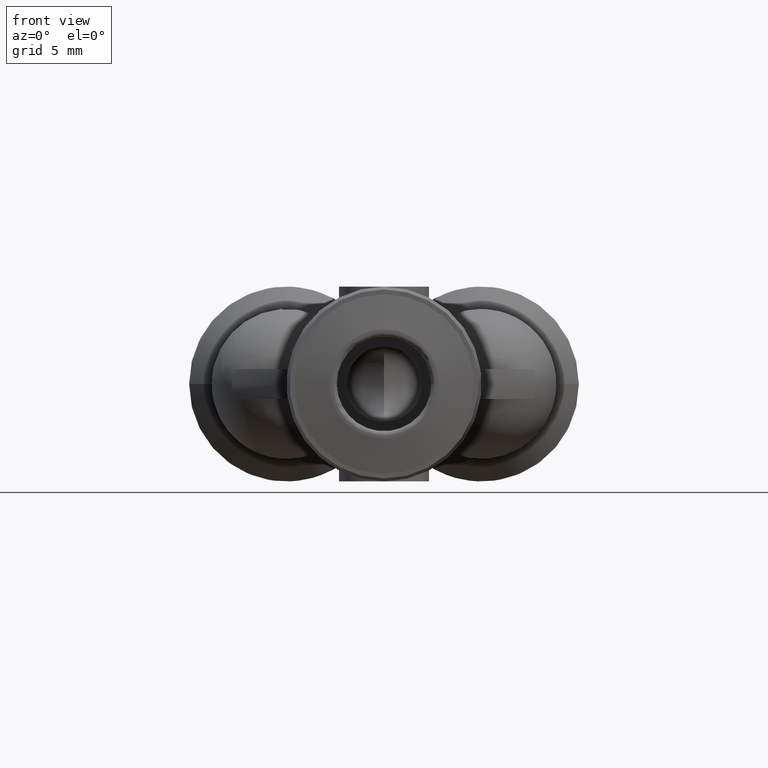
[diagram: clean part render]
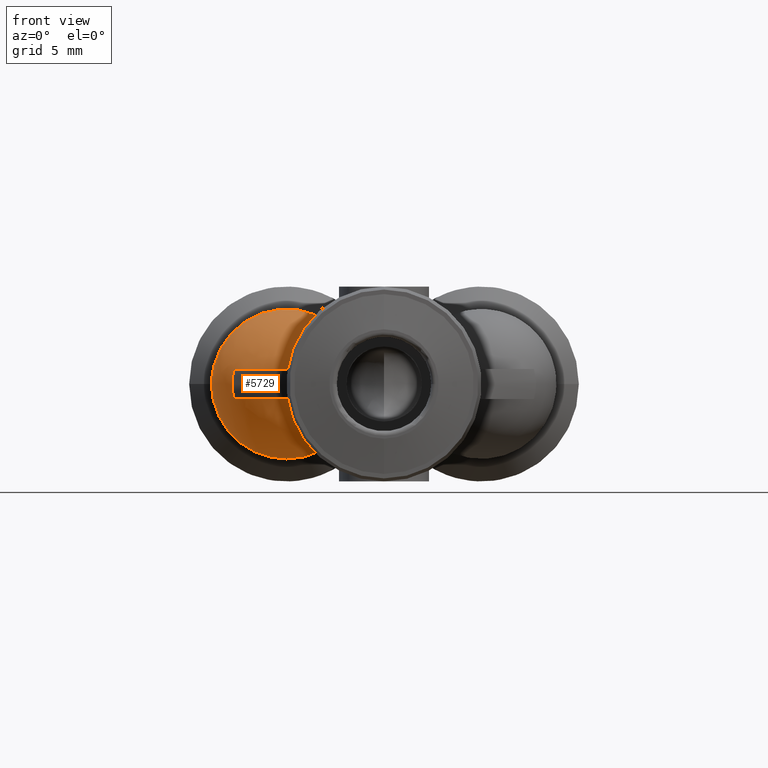
[diagram: same view with one face highlighted and labeled with its STEP entity id]
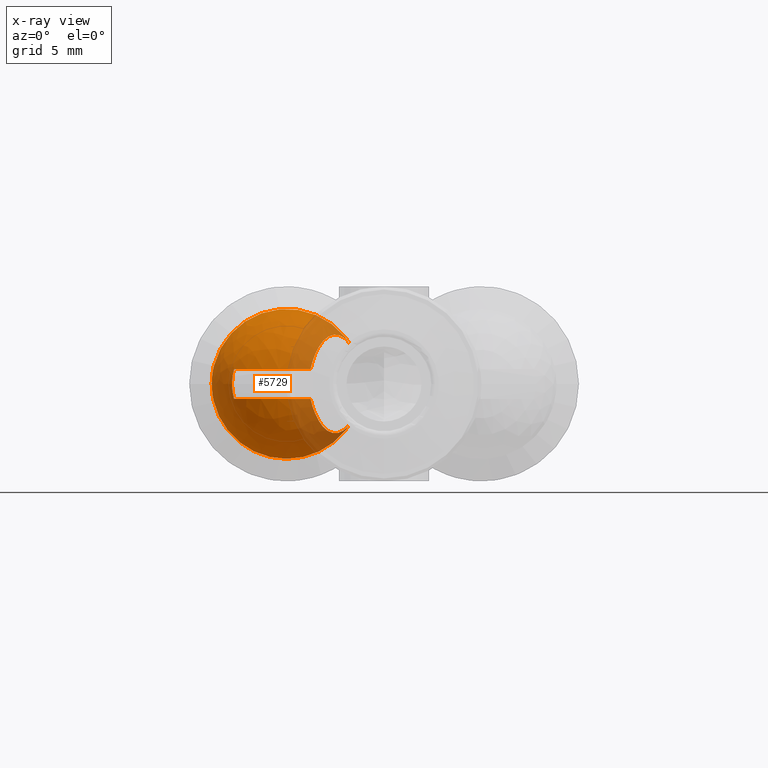
[diagram: x-ray of the same camera — body ghosted, the highlighted face saturated]
A machine part, front view. The second image highlights one B-rep face of the part: STEP entity #5729.
The next image is the same camera in x-ray: the body ghosted, the highlighted face saturated — about 24% of this face is hidden behind the body in this view.
In plain terms, the highlighted face is a freeform B-spline surface patch.
Its self-contained STEP definition (entity closure, byte-faithful):
#22 = DIRECTION ( 'NONE',  ( -0.0000000000000000000, -1.000000000000000000, 4.636897484427861500E-014 ) ) ;
#24 = VERTEX_POINT ( 'NONE', #5102 ) ;
#29 = B_SPLINE_CURVE_WITH_KNOTS ( 'NONE', 3,
 ( #3671, #574, #5069, #2365 ),
 .UNSPECIFIED., .F., .F.,
 ( 4, 4 ),
 ( 0.0000000000000000000, 1.000000000000000000 ),
 .UNSPECIFIED. ) ;
#60 = CARTESIAN_POINT ( 'NONE',  ( -0.1716838279831953400, 0.4212598425198296200, 0.09630545524130781900 ) ) ;
#86 = CARTESIAN_POINT ( 'NONE',  ( -0.09872948265596046000, 0.5460501700532934800, 0.1161006428140637100 ) ) ;
#116 = CARTESIAN_POINT ( 'NONE',  ( -0.1760733430999618400, 0.4137514613990376200, -0.08848026240722477200 ) ) ;
#135 = CIRCLE ( 'NONE', #536, 0.1968503937007948000 ) ;
#143 = CARTESIAN_POINT ( 'NONE',  ( -0.1716838279831953400, 0.4212598425198296200, 0.09630545524130781900 ) ) ;
#232 = CARTESIAN_POINT ( 'NONE',  ( -0.1602124600669935000, 0.4408819192186063700, -0.1129001222256683800 ) ) ;
#279 = CARTESIAN_POINT ( 'NONE',  ( -0.2279155177665910000, 0.3791715347266914600, -0.03937007874015744500 ) ) ;
#352 = CARTESIAN_POINT ( 'NONE',  ( -0.3993319701483046300, 0.4360371542611296600, 1.418150575992638500E-018 ) ) ;
#413 = CARTESIAN_POINT ( 'NONE',  ( -0.2221283402399653900, 0.5708661417324864000, -0.3090007881402660500 ) ) ;
#436 = CARTESIAN_POINT ( 'NONE',  ( -0.3177872070674347400, 0.3879651260465978900, 0.03937007874015688300 ) ) ;
#450 = CARTESIAN_POINT ( 'NONE',  ( -0.1022864650141317900, 0.5708661417324847300, 0.1230904787598349500 ) ) ;
#536 = AXIS2_PLACEMENT_3D ( 'NONE', #2681, #22, #3115 ) ;
#544 = CARTESIAN_POINT ( 'NONE',  ( -0.09257637847665961500, 0.5565752166757894600, 0.1089469649204580200 ) ) ;
#560 = EDGE_CURVE ( 'NONE', #3074, #4651, #3337, .T. ) ;
#574 = CARTESIAN_POINT ( 'NONE',  ( -0.3993321771867509600, 0.4360371049510835500, 0.01344034062099667600 ) ) ;
#604 = CARTESIAN_POINT ( 'NONE',  ( -0.1801998313415724100, 0.4072477773995421500, 0.07988603281600144300 ) ) ;
#658 = ORIENTED_EDGE ( 'NONE', *, *, #5222, .F. ) ;
#673 = CARTESIAN_POINT ( 'NONE',  ( -0.09860723454696800100, 0.5462592786607805000, -0.1166350193676759700 ) ) ;
#689 = CARTESIAN_POINT ( 'NONE',  ( -0.1690182909497869000, 0.4258193137611925300, -0.1010573106827329000 ) ) ;
#697 = EDGE_CURVE ( 'NONE', #4863, #5143, #3630, .T. ) ;
#731 = CARTESIAN_POINT ( 'NONE',  ( -0.2643393917005630300, 0.3779646246156225800, -0.03937007874015754900 ) ) ;
#859 = CARTESIAN_POINT ( 'NONE',  ( -0.4527559055119608800, 0.08973286751210229900, 0.2405666371101909100 ) ) ;
#879 = CARTESIAN_POINT ( 'NONE',  ( -0.2915717356839537800, 0.3811037534181926900, 0.03937007874015745900 ) ) ;
#951 = EDGE_CURVE ( 'NONE', #4923, #4700, #1600, .T. ) ;
#955 = B_SPLINE_CURVE_WITH_KNOTS ( 'NONE', 3,
 ( #3759, #673, #4240, #1570, #4702, #2007, #5168, #2462, #5602, #2894, #232, #3344, #689, #3776 ),
 .UNSPECIFIED., .F., .F.,
 ( 4, 2, 2, 2, 2, 2, 4 ),
 ( 2.643198621435935300E-016, 0.001067358897916217300, 0.002134717795832170100, 0.002668397244790148500, 0.003202076693748126500, 0.003735756142706105800, 0.004269435591664085200 ),
 .UNSPECIFIED. ) ;
#956 = CARTESIAN_POINT ( 'NONE',  ( -0.1603987516797172100, 0.4405632625126311700, 0.1133614872300167000 ) ) ;
#985 = VERTEX_POINT ( 'NONE', #1830 ) ;
#1029 = CARTESIAN_POINT ( 'NONE',  ( -0.1906190649065008200, 0.3917479620334120600, 0.05041307996971339900 ) ) ;
#1164 = B_SPLINE_CURVE_WITH_KNOTS ( 'NONE', 3,
 ( #143, #3240, #604, #3698, #1029, #4163 ),
 .UNSPECIFIED., .F., .F.,
 ( 4, 2, 4 ),
 ( 1.000290353557371300E-017, 0.0008795014551597618600, 0.001759002910319513700 ),
 .UNSPECIFIED. ) ;
#1172 = CARTESIAN_POINT ( 'NONE',  ( -0.2912927632647258100, 0.3810515325461710800, -0.03937007874015748000 ) ) ;
#1234 = AXIS2_PLACEMENT_3D ( 'NONE', #4415, #1740, #4882 ) ;
#1308 = CARTESIAN_POINT ( 'NONE',  ( -0.4527559055119609300, 0.5708661417324839600, -0.2405666371101737300 ) ) ;
#1329 = CARTESIAN_POINT ( 'NONE',  ( -0.2643740370679864600, 0.3779635248215970100, 0.03937007874015735500 ) ) ;
#1331 = ORIENTED_EDGE ( 'NONE', *, *, #2749, .T. ) ;
#1332 = DIRECTION ( 'NONE',  ( 6.455563999999999400E-014, -1.000000000000000000, -0.0000000000000000000 ) ) ;
#1357 = CARTESIAN_POINT ( 'NONE',  ( -0.3938228973749594600, 0.4360371049510815600, -0.03937007874015861800 ) ) ;
#1359 = CARTESIAN_POINT ( 'NONE',  ( -0.3176500912080123500, 0.3879160328463408000, -0.03937007874015766700 ) ) ;
#1407 = CARTESIAN_POINT ( 'NONE',  ( -0.1403647765716148100, 0.4748319041449200500, 0.1279775991353701800 ) ) ;
#1410 = CARTESIAN_POINT ( 'NONE',  ( -0.3427972680247012300, 0.3984382095120111400, -0.03937007874015752800 ) ) ;
#1415 = CARTESIAN_POINT ( 'NONE',  ( -0.3993321771867509600, 0.4360371049510835500, -0.01344034062099664200 ) ) ;
#1443 = CIRCLE ( 'NONE', #1234, 0.1968503937007948000 ) ;
#1570 = CARTESIAN_POINT ( 'NONE',  ( -0.1189798249350907400, 0.5114114266810884100, -0.1291034526357137100 ) ) ;
#1600 = B_SPLINE_CURVE_WITH_KNOTS ( 'NONE', 3,
 ( #1964, #2658, #2299, #1948 ),
 .UNSPECIFIED., .F., .F.,
 ( 4, 4 ),
 ( 3.458587936422550400E-017, 0.0005671401409308669600 ),
 .UNSPECIFIED. ) ;
#1634 = B_SPLINE_CURVE_WITH_KNOTS ( 'NONE', 3,
 ( #60, #2729, #956, #4087, #1407, #4542, #1864, #5012, #2312, #5468, #2753, #86, #3183, #544 ),
 .UNSPECIFIED., .F., .F.,
 ( 4, 2, 2, 2, 2, 2, 4 ),
 ( 1.226634733346699300E-017, 0.001067358897915968800, 0.002134717795831924200, 0.002668397244789902200, 0.003202076693747879300, 0.003735756142705857300, 0.004269435591663835400 ),
 .UNSPECIFIED. ) ;
#1712 = ORIENTED_EDGE ( 'NONE', *, *, #1971, .T. ) ;
#1740 = DIRECTION ( 'NONE',  ( -0.0000000000000000000, -1.000000000000000000, 2.692923278364190400E-010 ) ) ;
#1757 = CARTESIAN_POINT ( 'NONE',  ( -0.4527559055119609300, 0.5708661417324753000, -1.124851792275654300E-016 ) ) ;
#1778 = CARTESIAN_POINT ( 'NONE',  ( -0.2282795019045660800, 0.3791297151879786700, 0.03937007874015747300 ) ) ;
#1830 = CARTESIAN_POINT ( 'NONE',  ( -0.1716838279831953400, 0.4212598425198296200, 0.09630545524130781900 ) ) ;
#1860 = EDGE_CURVE ( 'NONE', #24, #3000, #1443, .T. ) ;
#1864 = CARTESIAN_POINT ( 'NONE',  ( -0.1261044173791233700, 0.4992246238162929000, 0.1296855331369278500 ) ) ;
#1868 = CARTESIAN_POINT ( 'NONE',  ( -0.3810198742361496400, 0.4229408200500707200, -0.03937007874015755600 ) ) ;
#1903 = CARTESIAN_POINT ( 'NONE',  ( -0.1906161031639885500, 0.3917521200034287400, -0.05042758948552776600 ) ) ;
#1948 = CARTESIAN_POINT ( 'NONE',  ( -0.09257637847665961500, 0.5565752166757894600, 0.1089469649204580200 ) ) ;
#1964 = CARTESIAN_POINT ( 'NONE',  ( -0.1022864650141317900, 0.5708661417324847300, 0.1230904787598349500 ) ) ;
#1971 = EDGE_CURVE ( 'NONE', #985, #4700, #1634, .T. ) ;
#2007 = CARTESIAN_POINT ( 'NONE',  ( -0.1367357133241410800, 0.4810395123313898600, -0.1285687343268706600 ) ) ;
#2158 = CIRCLE ( 'NONE', #3274, 0.1968503937007733400 ) ;
#2191 = ORIENTED_EDGE ( 'NONE', *, *, #1860, .T. ) ;
#2190 = CARTESIAN_POINT ( 'NONE',  ( -0.09091478691338281100, 0.3561278060970968200, -0.1073691678176911900 ) ) ;
#2211 = CARTESIAN_POINT ( 'NONE',  ( -0.4527559055119609300, 0.5708661417324755200, -2.410722045565310900E-017 ) ) ;
#2231 = CARTESIAN_POINT ( 'NONE',  ( -0.1928732080933008300, 0.3885833858607773400, 0.03937007874012072400 ) ) ;
#2299 = CARTESIAN_POINT ( 'NONE',  ( -0.09581629711072405000, 0.5606645979259506900, 0.1143405446679998700 ) ) ;
#2312 = CARTESIAN_POINT ( 'NONE',  ( -0.1155633151417383200, 0.5172554565907711000, 0.1273969538001823700 ) ) ;
#2315 = EDGE_CURVE ( 'NONE', #985, #5022, #1164, .T. ) ;
#2326 = CARTESIAN_POINT ( 'NONE',  ( -0.1022864650141317400, 0.5708661417324847300, -0.1230904787598349300 ) ) ;
#2365 = CARTESIAN_POINT ( 'NONE',  ( -0.3938230013498991200, 0.4360372174884776800, 0.03937007874015920800 ) ) ;
#2373 = CARTESIAN_POINT ( 'NONE',  ( -0.09257637847665961500, 0.5565752166757894600, 0.1089469649204580200 ) ) ;
#2456 = EDGE_CURVE ( 'NONE', #4863, #4642, #955, .T. ) ;
#2462 = CARTESIAN_POINT ( 'NONE',  ( -0.1471307135465210700, 0.4632585908983669100, -0.1240476802526775700 ) ) ;
#2507 = CARTESIAN_POINT ( 'NONE',  ( -0.1928732080933067400, 0.3885833858607799500, -0.03937007874010687400 ) ) ;
#2537 = CARTESIAN_POINT ( 'NONE',  ( -0.3938228973749594600, 0.4360371049510815600, -0.03937007874015861800 ) ) ;
#2624 = CARTESIAN_POINT ( 'NONE',  ( -0.09257637847665956000, 0.5565752166757894600, -0.1089469649204580400 ) ) ;
#2626 = CARTESIAN_POINT ( 'NONE',  ( -0.2221283402399653900, 0.5708661417324865100, 0.3090007881402660500 ) ) ;
#2647 = CARTESIAN_POINT ( 'NONE',  ( -0.3666929352638767500, 0.4119434894671273300, 0.03937007874015743800 ) ) ;
#2658 = CARTESIAN_POINT ( 'NONE',  ( -0.09909759142241292300, 0.5653428506527074000, 0.1191107093540282700 ) ) ;
#2671 = ORIENTED_EDGE ( 'NONE', *, *, #2456, .T. ) ;
#2681 = CARTESIAN_POINT ( 'NONE',  ( -0.2559055118111661600, 0.5708661417324754100, 0.0000000000000000000 ) ) ;
#2729 = CARTESIAN_POINT ( 'NONE',  ( -0.1663527539163751300, 0.4303787850025558300, 0.1058091661241557000 ) ) ;
#2749 = EDGE_CURVE ( 'NONE', #4651, #4628, #29, .T. ) ;
#2753 = CARTESIAN_POINT ( 'NONE',  ( -0.1052417005432581800, 0.5349108499829131600, 0.1216845463592271100 ) ) ;
#2754 = CARTESIAN_POINT ( 'NONE',  ( -0.1716838279831953400, 0.4212598425198296200, -0.09630545524130776400 ) ) ;
#2777 = CARTESIAN_POINT ( 'NONE',  ( -0.1802867160491167500, 0.4071125140923989000, -0.07969042975348530900 ) ) ;
#2845 = EDGE_CURVE ( 'NONE', #4628, #5022, #5784, .T. ) ;
#2894 = CARTESIAN_POINT ( 'NONE',  ( -0.1570404209735469000, 0.4463077755626612100, -0.1162365209205126800 ) ) ;
#2933 =( BOUNDED_SURFACE ( )  B_SPLINE_SURFACE ( 3, 3, ( 
 ( #5324, #4879, #2190, #5348 ),
 ( #2626, #5772, #3063, #413 ),
 ( #3525, #859, #3978, #1308 ),
 ( #4434, #1757, #4904, #2211 ) ),
 .UNSPECIFIED., .F., .F., .F. ) 
 B_SPLINE_SURFACE_WITH_KNOTS ( ( 4, 4 ),
 ( 4, 4 ),
 ( 0.0000000000000000000, 1.000000000000000000 ),
 ( 0.0000000000000000000, 1.000000000000000000 ),
 .UNSPECIFIED. ) 
 GEOMETRIC_REPRESENTATION_ITEM ( )  RATIONAL_B_SPLINE_SURFACE ( (
 ( 1.000000000000000000, 0.3333333333333095600, 0.3333333333333095600, 1.000000000000000000),
 ( 0.5229804427639763700, 0.1743268142546463600, 0.1743268142546463600, 0.5229804427639763700),
 ( 0.5229804427639763700, 0.1743268142546463600, 0.1743268142546463600, 0.5229804427639763700),
 ( 1.000000000000000000, 0.3333333333333095600, 0.3333333333333095600, 1.000000000000000000) ) ) 
 REPRESENTATION_ITEM ( '' )  SURFACE ( )  );
#3000 = VERTEX_POINT ( 'NONE', #4202 ) ;
#3063 = CARTESIAN_POINT ( 'NONE',  ( -0.2221283402399653600, -0.04713543454808966800, -0.3090007881402880900 ) ) ;
#3074 = VERTEX_POINT ( 'NONE', #2537 ) ;
#3078 = CARTESIAN_POINT ( 'NONE',  ( -0.3346567751062818900, 0.3945699016246991800, 0.03937007874015688300 ) ) ;
#3115 = DIRECTION ( 'NONE',  ( 1.000000000000000000, 0.0000000000000000000, -1.776356839400250500E-015 ) ) ;
#3136 = CARTESIAN_POINT ( 'NONE',  ( -0.1928732080933008300, 0.3885833858607773400, 0.03937007874012072400 ) ) ;
#3150 = VERTEX_POINT ( 'NONE', #5678 ) ;
#3183 = CARTESIAN_POINT ( 'NONE',  ( -0.09559180651181005400, 0.5514172476682887000, 0.1127909921440656000 ) ) ;
#3216 = CARTESIAN_POINT ( 'NONE',  ( -0.1716838279831953400, 0.4212598425198296200, -0.09630545524130776400 ) ) ;
#3240 = CARTESIAN_POINT ( 'NONE',  ( -0.1760679232243124200, 0.4137607322389644800, 0.08848992442477464400 ) ) ;
#3274 = AXIS2_PLACEMENT_3D ( 'NONE', #4008, #1332, #4457 ) ;
#3318 = FACE_OUTER_BOUND ( 'NONE', #3647, .T. ) ;
#3337 = B_SPLINE_CURVE_WITH_KNOTS ( 'NONE', 3,
 ( #1357, #3634, #1415, #352 ),
 .UNSPECIFIED., .F., .F.,
 ( 4, 4 ),
 ( 0.0000000000000000000, 1.000000000000000000 ),
 .UNSPECIFIED. ) ;
#3344 = CARTESIAN_POINT ( 'NONE',  ( -0.1661888639869402200, 0.4306591230397475200, -0.1053205149327502000 ) ) ;
#3390 = CARTESIAN_POINT ( 'NONE',  ( -0.2551366060537759700, 0.3777805904489073800, -0.03937007874015744500 ) ) ;
#3434 = B_SPLINE_CURVE_WITH_KNOTS ( 'NONE', 3,
 ( #5039, #1903, #5502, #2777, #116, #3216 ),
 .UNSPECIFIED., .F., .F.,
 ( 4, 2, 4 ),
 ( 6.786259315078317800E-016, 0.0008786095193449428400, 0.001757219038689206300 ),
 .UNSPECIFIED. ) ;
#3495 = ORIENTED_EDGE ( 'NONE', *, *, #560, .T. ) ;
#3525 = CARTESIAN_POINT ( 'NONE',  ( -0.4527559055119609300, 0.5708661417324839600, 0.2405666371101737300 ) ) ;
#3545 = CARTESIAN_POINT ( 'NONE',  ( -0.3091698226913804400, 0.3852731549831365800, 0.03937007874015744500 ) ) ;
#3630 = B_SPLINE_CURVE_WITH_KNOTS ( 'NONE', 3,
 ( #4369, #4815, #4348, #4310 ),
 .UNSPECIFIED., .F., .F.,
 ( 4, 4 ),
 ( 5.917956445485122400E-017, 0.0005671401409308907000 ),
 .UNSPECIFIED. ) ;
#3634 = CARTESIAN_POINT ( 'NONE',  ( -0.3975703710782694200, 0.4360371049510821100, -0.02624229763918406100 ) ) ;
#3647 = EDGE_LOOP ( 'NONE', ( #2671, #658, #4033, #3495, #1331, #4623, #4633, #1712, #5181, #4424, #2191, #5652, #5440 ) ) ;
#3671 = CARTESIAN_POINT ( 'NONE',  ( -0.3993319701483046300, 0.4360371542611296600, 1.418150575992638500E-018 ) ) ;
#3698 = CARTESIAN_POINT ( 'NONE',  ( -0.1874804755962231600, 0.3962314283001585600, 0.06086730423490380200 ) ) ;
#3759 = CARTESIAN_POINT ( 'NONE',  ( -0.09257637847665956000, 0.5565752166757894600, -0.1089469649204580400 ) ) ;
#3776 = CARTESIAN_POINT ( 'NONE',  ( -0.1716838279831953400, 0.4212598425198296200, -0.09630545524130776400 ) ) ;
#3829 = CARTESIAN_POINT ( 'NONE',  ( -0.2823814784474719700, 0.3796041517118614000, -0.03937007874015755600 ) ) ;
#3852 = EDGE_CURVE ( 'NONE', #3150, #3074, #4788, .T. ) ;
#3978 = CARTESIAN_POINT ( 'NONE',  ( -0.4527559055119608800, 0.08973286751210223000, -0.2405666371101908000 ) ) ;
#4000 = CARTESIAN_POINT ( 'NONE',  ( -0.2825260446699372500, 0.3796215790348507200, 0.03937007874015735500 ) ) ;
#4008 = CARTESIAN_POINT ( 'NONE',  ( -0.2559055118111588400, 0.5708661417324664100, 0.0000000000000000000 ) ) ;
#4033 = ORIENTED_EDGE ( 'NONE', *, *, #3852, .T. ) ;
#4087 = CARTESIAN_POINT ( 'NONE',  ( -0.1472519663708166400, 0.4630511847515456100, 0.1245855146685633800 ) ) ;
#4089 = CARTESIAN_POINT ( 'NONE',  ( -0.3346262353544966500, 0.3945533993933111900, -0.03937007874015768100 ) ) ;
#4163 = CARTESIAN_POINT ( 'NONE',  ( -0.1928732080933008300, 0.3885833858607773400, 0.03937007874012072400 ) ) ;
#4202 = CARTESIAN_POINT ( 'NONE',  ( -0.2559055118111661600, 0.5708661417324663000, -0.1968503937007947400 ) ) ;
#4240 = CARTESIAN_POINT ( 'NONE',  ( -0.1050951333128674300, 0.5351615570875291100, -0.1221991027926161800 ) ) ;
#4297 = CARTESIAN_POINT ( 'NONE',  ( -0.3088969473373294200, 0.3851950583972845700, -0.03937007874015748000 ) ) ;
#4310 = CARTESIAN_POINT ( 'NONE',  ( -0.1022864650141317400, 0.5708661417324847300, -0.1230904787598349300 ) ) ;
#4348 = CARTESIAN_POINT ( 'NONE',  ( -0.09909759142241292300, 0.5653428506527074000, -0.1191107093540282700 ) ) ;
#4369 = CARTESIAN_POINT ( 'NONE',  ( -0.09257637847665956000, 0.5565752166757894600, -0.1089469649204580400 ) ) ;
#4415 = CARTESIAN_POINT ( 'NONE',  ( -0.2559055118111661600, 0.5708661417324754100, 0.0000000000000000000 ) ) ;
#4424 = ORIENTED_EDGE ( 'NONE', *, *, #5611, .T. ) ;
#4434 = CARTESIAN_POINT ( 'NONE',  ( -0.4527559055119609300, 0.5708661417324754100, 2.410722045565746000E-017 ) ) ;
#4450 = CARTESIAN_POINT ( 'NONE',  ( -0.2553283244790722200, 0.3777826466409720000, 0.03937007874015747300 ) ) ;
#4457 = DIRECTION ( 'NONE',  ( -1.000000000000000000, -6.453171330634183100E-014, 0.0000000000000000000 ) ) ;
#4542 = CARTESIAN_POINT ( 'NONE',  ( -0.1296823272624170500, 0.4931045148053943000, 0.1296958778351783000 ) ) ;
#4546 = CARTESIAN_POINT ( 'NONE',  ( -0.3663860256740403300, 0.4117432040807019200, -0.03937007874015751400 ) ) ;
#4623 = ORIENTED_EDGE ( 'NONE', *, *, #2845, .T. ) ;
#4628 = VERTEX_POINT ( 'NONE', #5031 ) ;
#4633 = ORIENTED_EDGE ( 'NONE', *, *, #2315, .F. ) ;
#4642 = VERTEX_POINT ( 'NONE', #2754 ) ;
#4651 = VERTEX_POINT ( 'NONE', #5493 ) ;
#4700 = VERTEX_POINT ( 'NONE', #2373 ) ;
#4702 = CARTESIAN_POINT ( 'NONE',  ( -0.1260523577632056400, 0.4993136731593102500, -0.1302647488542293400 ) ) ;
#4788 = B_SPLINE_CURVE_WITH_KNOTS ( 'NONE', 3,
 ( #2507, #5219, #279, #3390, #731, #3829, #1172, #4297, #1359, #4089, #1410, #4546, #1868, #5016 ),
 .UNSPECIFIED., .F., .F.,
 ( 4, 2, 2, 2, 2, 2, 4 ),
 ( 2.338533357127564700E-016, 0.001375775712335635700, 0.002063663568503336300, 0.002751551424671036700, 0.003439439280838738000, 0.004127327137006439300, 0.005503102849341842700 ),
 .UNSPECIFIED. ) ;
#4815 = CARTESIAN_POINT ( 'NONE',  ( -0.09581629711072403600, 0.5606645979259506900, -0.1143405446679998700 ) ) ;
#4863 = VERTEX_POINT ( 'NONE', #2624 ) ;
#4879 = CARTESIAN_POINT ( 'NONE',  ( -0.09091478691338281100, 0.3561278060970968200, 0.1073691678176911900 ) ) ;
#4882 = DIRECTION ( 'NONE',  ( 1.000000000000000000, 0.0000000000000000000, 0.0000000000000000000 ) ) ;
#4904 = CARTESIAN_POINT ( 'NONE',  ( -0.4527559055119609300, 0.5708661417324754100, -1.606996201388760000E-016 ) ) ;
#4905 = CARTESIAN_POINT ( 'NONE',  ( -0.3938230013498991200, 0.4360372174884776800, 0.03937007874015920800 ) ) ;
#4923 = VERTEX_POINT ( 'NONE', #450 ) ;
#4927 = CARTESIAN_POINT ( 'NONE',  ( -0.2101823280641260700, 0.3825979940892572700, 0.03937007874015749400 ) ) ;
#4966 = EDGE_CURVE ( 'NONE', #3000, #5143, #135, .T. ) ;
#5012 = CARTESIAN_POINT ( 'NONE',  ( -0.1190560089531396100, 0.5112811119133733300, 0.1285340674648853800 ) ) ;
#5016 = CARTESIAN_POINT ( 'NONE',  ( -0.3938228973749594600, 0.4360371049510815600, -0.03937007874015861800 ) ) ;
#5022 = VERTEX_POINT ( 'NONE', #3136 ) ;
#5031 = CARTESIAN_POINT ( 'NONE',  ( -0.3938230013498991200, 0.4360372174884776800, 0.03937007874015920800 ) ) ;
#5039 = CARTESIAN_POINT ( 'NONE',  ( -0.1928732080933067400, 0.3885833858607799500, -0.03937007874010687400 ) ) ;
#5069 = CARTESIAN_POINT ( 'NONE',  ( -0.3975703710782694200, 0.4360371049510821700, 0.02624229763918409600 ) ) ;
#5102 = CARTESIAN_POINT ( 'NONE',  ( -0.4527559055119321800, 0.5708661417324537600, 0.0000000000000000000 ) ) ;
#5143 = VERTEX_POINT ( 'NONE', #2326 ) ;
#5168 = CARTESIAN_POINT ( 'NONE',  ( -0.1402665412134337400, 0.4749999383102298500, -0.1274224008194846900 ) ) ;
#5181 = ORIENTED_EDGE ( 'NONE', *, *, #951, .F. ) ;
#5219 = CARTESIAN_POINT ( 'NONE',  ( -0.2101823159601605700, 0.3825979982747368400, -0.03937007874015753500 ) ) ;
#5222 = EDGE_CURVE ( 'NONE', #3150, #4642, #3434, .T. ) ;
#5324 = CARTESIAN_POINT ( 'NONE',  ( -0.09091478691338281100, 0.5708661417324792900, 0.1073691678176835500 ) ) ;
#5348 = CARTESIAN_POINT ( 'NONE',  ( -0.09091478691338281100, 0.5708661417324792900, -0.1073691678176835500 ) ) ;
#5366 = CARTESIAN_POINT ( 'NONE',  ( -0.3810199827472056100, 0.4229409102424787600, 0.03937007874015750100 ) ) ;
#5440 = ORIENTED_EDGE ( 'NONE', *, *, #697, .F. ) ;
#5468 = CARTESIAN_POINT ( 'NONE',  ( -0.1086425977945803500, 0.5290935257372285600, 0.1239705782562395000 ) ) ;
#5493 = CARTESIAN_POINT ( 'NONE',  ( -0.3993319701483046300, 0.4360371542611296600, 1.418150575992638500E-018 ) ) ;
#5502 = CARTESIAN_POINT ( 'NONE',  ( -0.1875499473456994400, 0.3961301911956883200, -0.06065378659816247900 ) ) ;
#5602 = CARTESIAN_POINT ( 'NONE',  ( -0.1504862905028410400, 0.4575187882099238700, -0.1218162008647006400 ) ) ;
#5611 = EDGE_CURVE ( 'NONE', #4923, #24, #2158, .T. ) ;
#5652 = ORIENTED_EDGE ( 'NONE', *, *, #4966, .T. ) ;
#5678 = CARTESIAN_POINT ( 'NONE',  ( -0.1928732080933067400, 0.3885833858607799500, -0.03937007874010687400 ) ) ;
#5729 = ADVANCED_FACE ( 'NONE', ( #3318 ), #2933, .T. ) ;
#5772 = CARTESIAN_POINT ( 'NONE',  ( -0.2221283402399653600, -0.04713543454808960500, 0.3090007881402881400 ) ) ;
#5784 = B_SPLINE_CURVE_WITH_KNOTS ( 'NONE', 3,
 ( #4905, #5366, #2647, #5794, #3078, #436, #3545, #879, #4000, #1329, #4450, #1778, #4927, #2231 ),
 .UNSPECIFIED., .F., .F.,
 ( 4, 2, 2, 2, 2, 2, 4 ),
 ( 1.734723475976807100E-018, 0.001375776674391746900, 0.002063665011587618100, 0.002751553348783489400, 0.003439441685979358500, 0.004127330023175227600, 0.005503106697566967500 ),
 .UNSPECIFIED. ) ;
#5794 = CARTESIAN_POINT ( 'NONE',  ( -0.3429697093856299300, 0.3985221631593491300, 0.03937007874015743800 ) ) ;